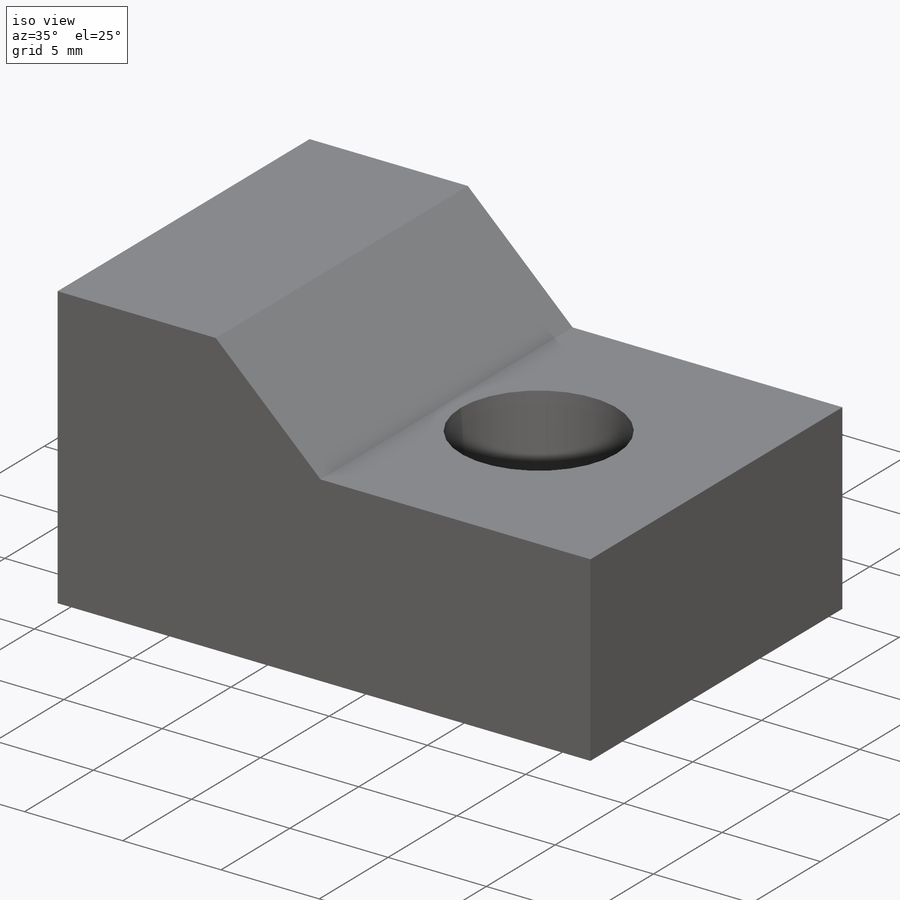
[diagram: iso view]
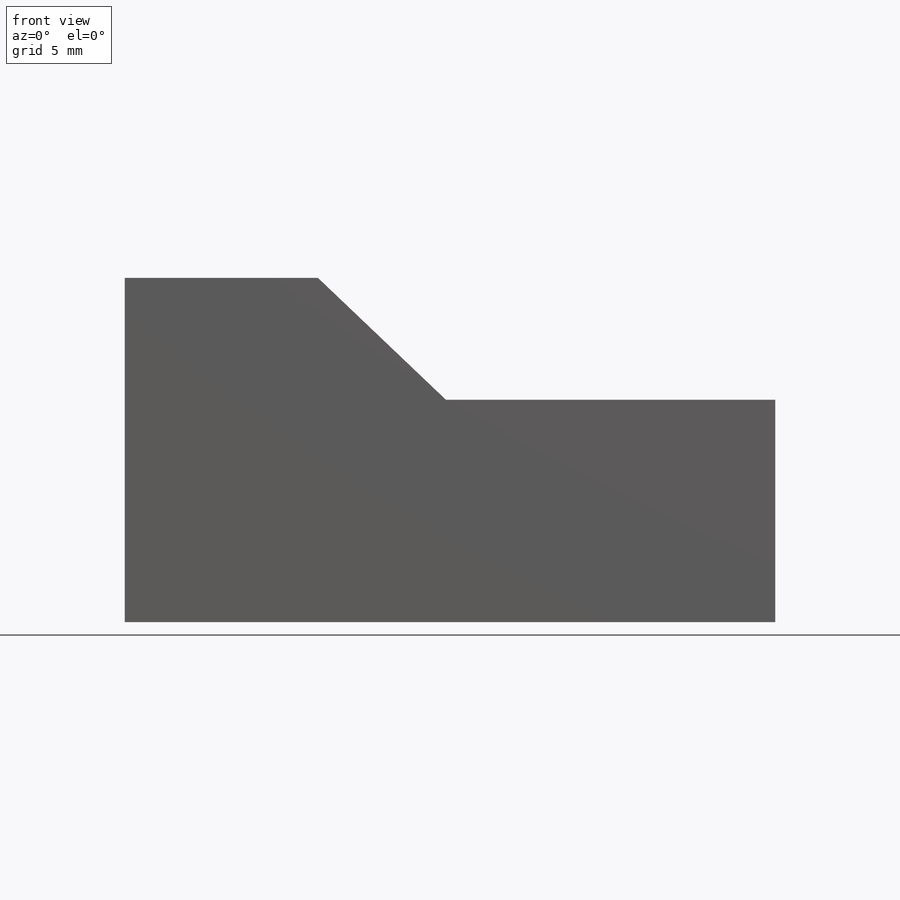
[diagram: front view]
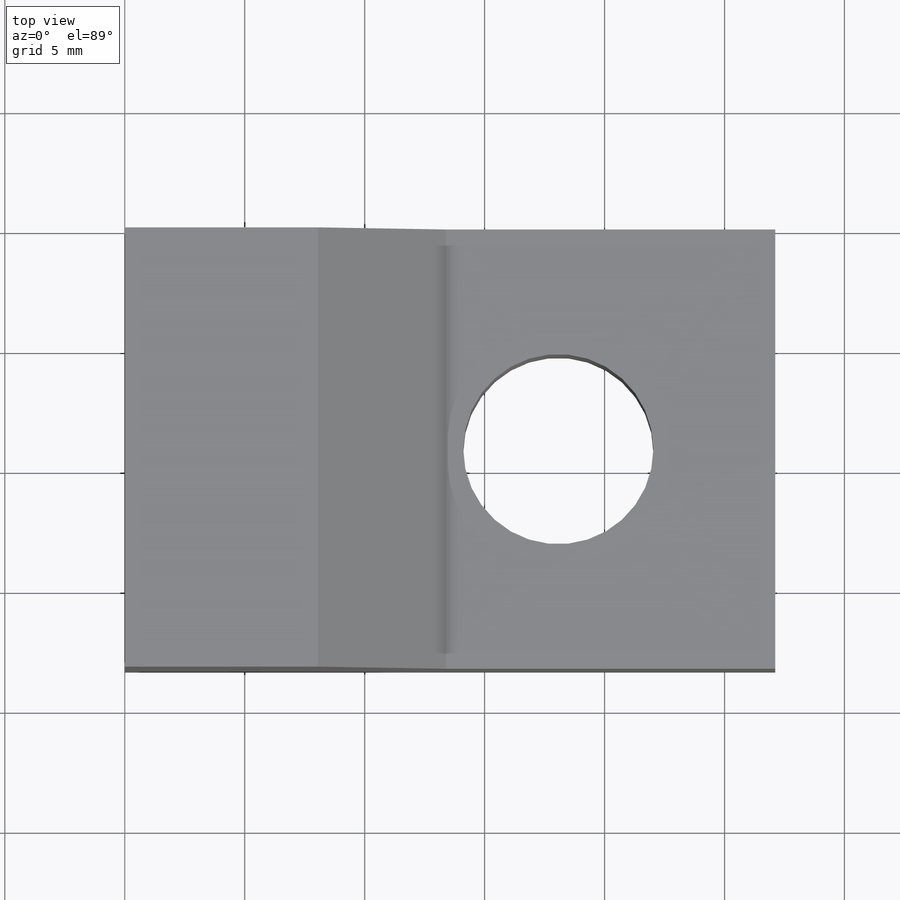
[diagram: top view]
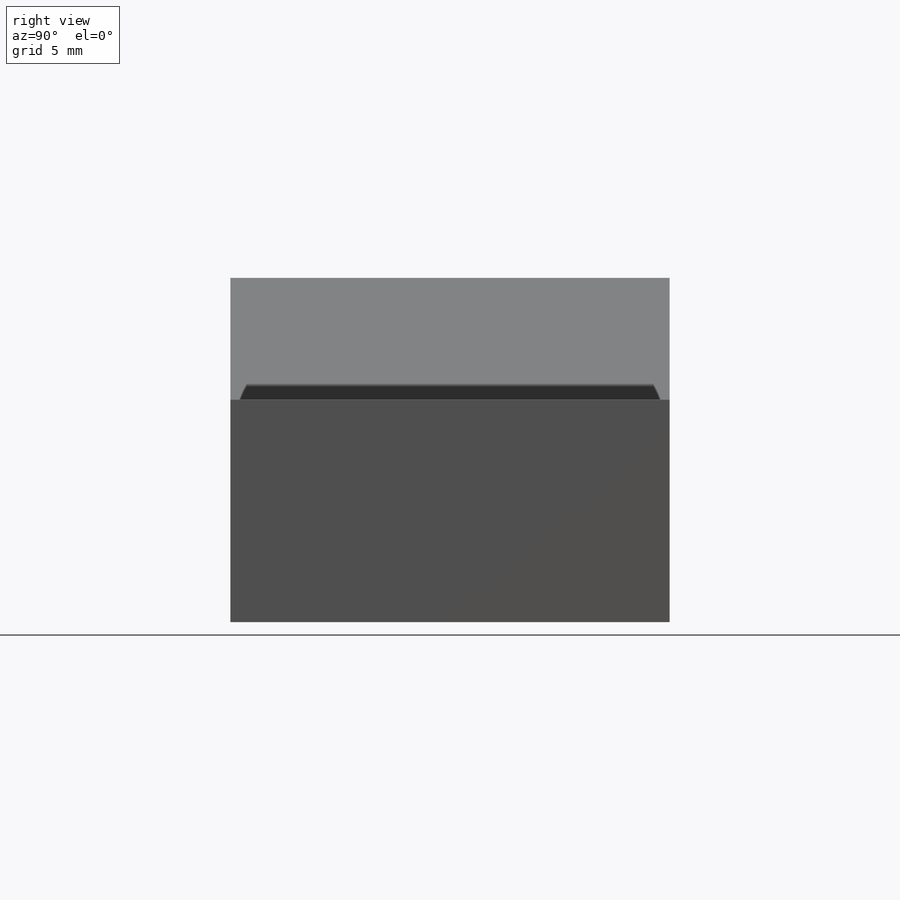
[diagram: right view]
SOLIDWORKS PART (.sldprt)
format: sldprt  version: not decoded by parser v0  size: 145,408 bytes
history: native  units: mm
features: sketch x3, cut_extrude x2, material x1, extrude x1 (+12 scaffold rows collapsed)
feature tree (19):
  scaffold x12  (default folders/planes/origin — collapsed)
  material  "Material <not specified>"
  sketch  "Sketch1"  dims[D1=14.351mm D2=8.0518mm D3=9.271mm D4=5.334mm D5=27.1145mm]
  extrude  "Boss-Extrude1"  Depth=18.3134mm
  sketch  "Sketch2"  dims[D1=7.9248mm D2=9.1567mm D3=9.0424mm]
  cut_extrude  "Cut-Extrude1"  [1 undecoded]
  sketch  "Sketch3"  dims[D1=7.62mm D2=6.096mm]
  cut_extrude  "Cut-Extrude2"  Depth=6.35mm
decode coverage: 5 of 6 modeling features carry decoded parameters
note: 1 parameter value undecoded
note: suppression state not decoded; provenance and decode notes live in map.json
